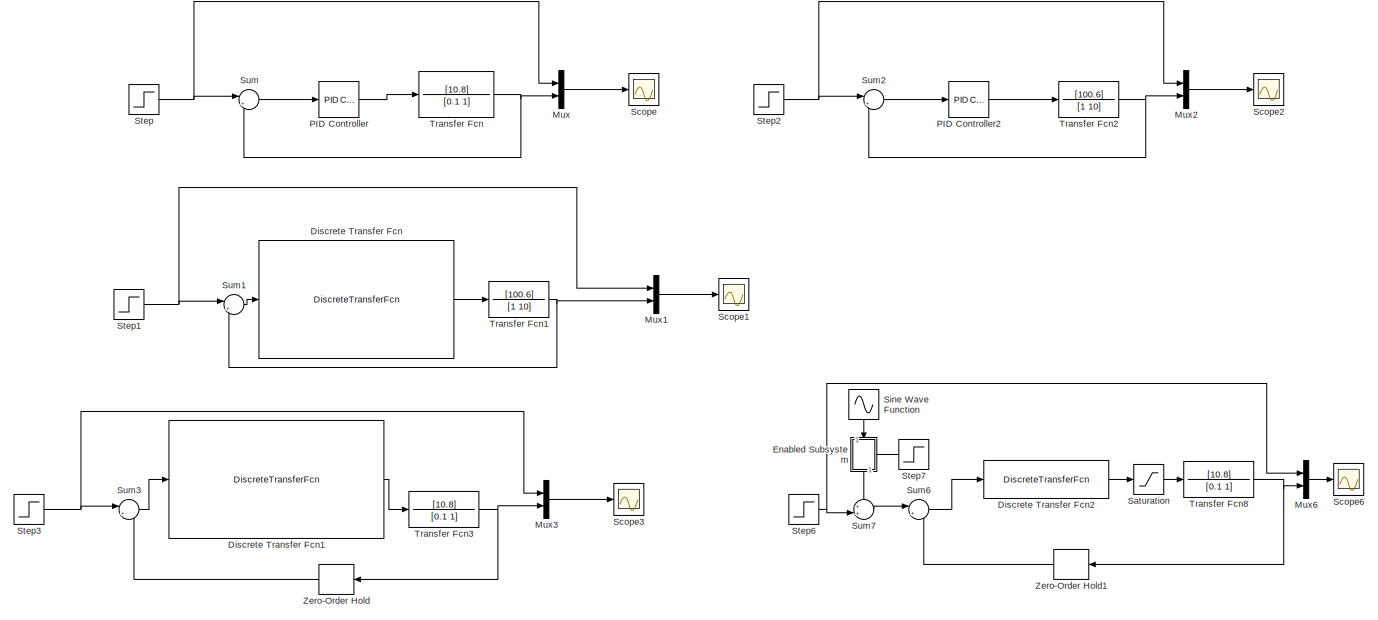
[diagram: root canvas - part 1/3, top left region]
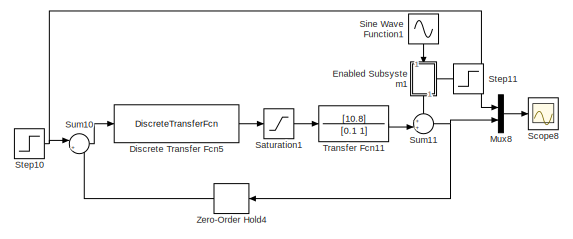
[diagram: root canvas - part 2/3, top right region]
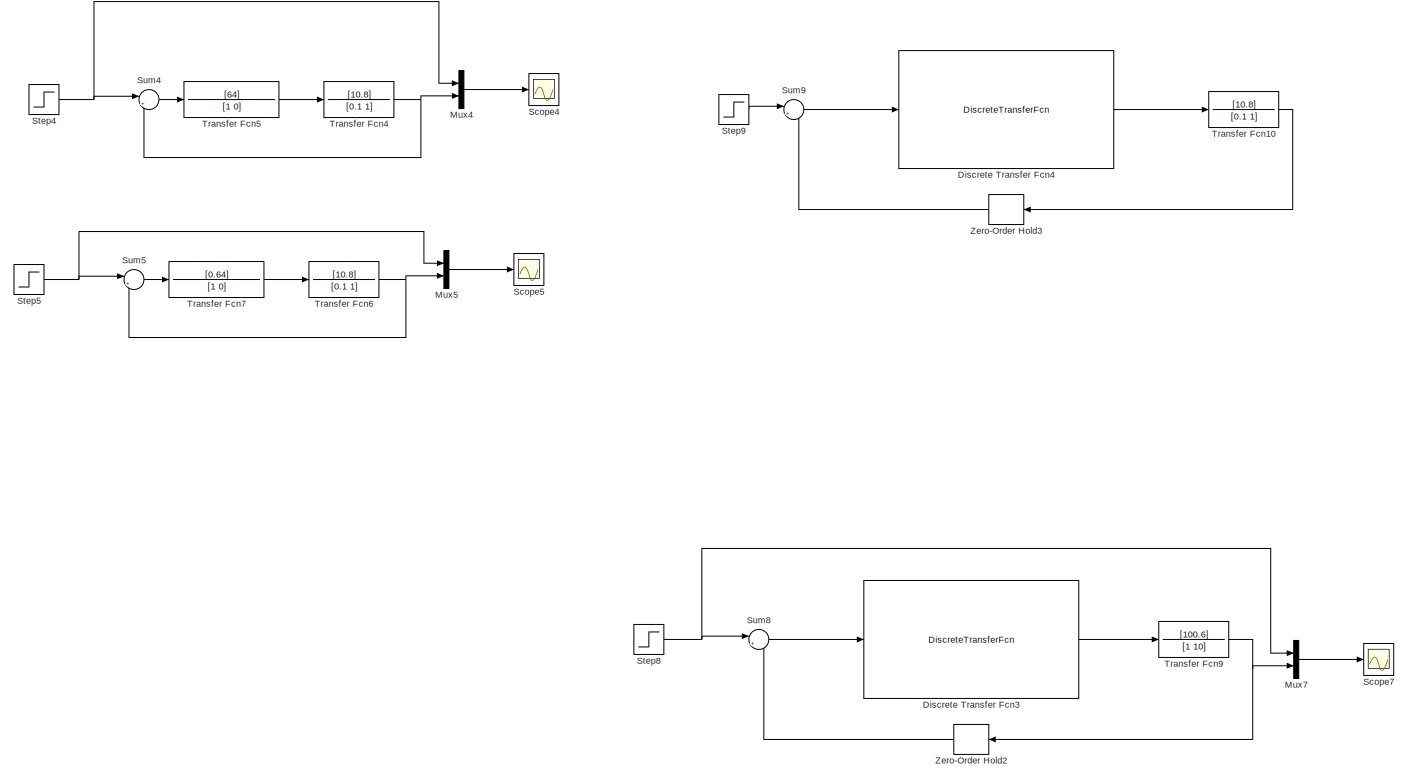
[diagram: root canvas - part 3/3, bottom center region]
MODEL slx_44671868aad1
KIND model
CONFIG AbsTol = auto
CONFIG EnableMultiTasking = off
CONFIG FixedStep = auto
CONFIG MaxStep = auto
CONFIG MinStep = auto
CONFIG RelTol = 1e-3
CONFIG SampleTimeConstraint = Unconstrained
CONFIG Solver = VariableStepAuto
CONFIG SolverName = VariableStepAuto
CONFIG StartTime = 0.0
CONFIG StopTime = 10.0
BLOCK [DiscreteTransferFcn] Discrete Transfer Fcn
  Denominator = [1 -1]
  InputPortMap = u0
  Numerator = [0.023797051029303 -0.014949900888424]
  Ports = [1, 1]
BLOCK [DiscreteTransferFcn] Discrete Transfer Fcn1
  Denominator = [1 -1]
  InputPortMap = u0
  Numerator = [0.003200000000000 0.003200000000000]
  Ports = [1, 1]
BLOCK [DiscreteTransferFcn] Discrete Transfer Fcn2
  Denominator = [1 -1]
  InputPortMap = u0
  Numerator = [0.0032 0.0032]
  Ports = [1, 1]
BLOCK [DiscreteTransferFcn] Discrete Transfer Fcn3
  Denominator = [1 -1]
  InputPortMap = u0
  Numerator = [0.255096910822079 -0.182278834704760]
  Ports = [1, 1]
BLOCK [DiscreteTransferFcn] Discrete Transfer Fcn4
  Denominator = [1 -1]
  InputPortMap = u0
  Numerator = [0.003200000000000 0.003200000000000]
  Ports = [1, 1]
BLOCK [DiscreteTransferFcn] Discrete Transfer Fcn5
  Denominator = [1 -1]
  InputPortMap = u0
  Numerator = [0.0032 0.0032]
  Ports = [1, 1]
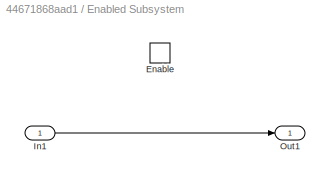
BLOCK [SubSystem] Enabled Subsystem
  NameLocation = left
  Ports = [1, 1, 1]
  RequestExecContextInheritance = off
  TreatAsAtomicUnit = on
BLOCK [EnablePort] Enabled Subsystem/Enable
  Ports = []
BLOCK [Inport] Enabled Subsystem/In1
BLOCK [Outport] Enabled Subsystem/Out1
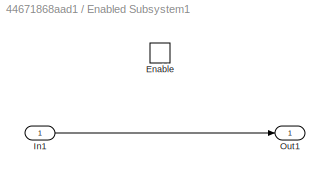
BLOCK [SubSystem] Enabled Subsystem1
  NameLocation = left
  Ports = [1, 1, 1]
  RequestExecContextInheritance = off
  TreatAsAtomicUnit = on
BLOCK [EnablePort] Enabled Subsystem1/Enable
  Ports = []
BLOCK [Inport] Enabled Subsystem1/In1
BLOCK [Outport] Enabled Subsystem1/Out1
BLOCK [Mux] Mux
  DisplayOption = bar
  Inputs = 2
  Ports = [2, 1]
BLOCK [Mux] Mux1
  DisplayOption = bar
  Inputs = 2
  Ports = [2, 1]
BLOCK [Mux] Mux2
  DisplayOption = bar
  Inputs = 2
  Ports = [2, 1]
BLOCK [Mux] Mux3
  DisplayOption = bar
  Inputs = 2
  Ports = [2, 1]
BLOCK [Mux] Mux4
  DisplayOption = bar
  Inputs = 2
  Ports = [2, 1]
BLOCK [Mux] Mux5
  DisplayOption = bar
  Inputs = 2
  Ports = [2, 1]
BLOCK [Mux] Mux6
  DisplayOption = bar
  Inputs = 2
  Ports = [2, 1]
BLOCK [Mux] Mux7
  DisplayOption = bar
  Inputs = 2
  Ports = [2, 1]
BLOCK [Mux] Mux8
  DisplayOption = bar
  Inputs = 2
  Ports = [2, 1]
BLOCK [Reference] PID Controller  REF=simulink/Continuous/PID Controller
  Ports = [1, 1]
  SourceBlock = simulink/Continuous/PID Controller
  SourceProductBaseCode = SL
  SourceType = PID 1dof
BLOCK [Reference] PID Controller2  REF=simulink/Continuous/PID Controller
  Ports = [1, 1]
  SourceBlock = simulink/Continuous/PID Controller
  SourceProductBaseCode = SL
  SourceType = PID 1dof
BLOCK [Saturate] Saturation
  LowerLimit = 0
  UpperLimit = 1
BLOCK [Saturate] Saturation1
  LowerLimit = 0
  UpperLimit = 1
BLOCK [Scope] Scope
  Floating = off
  NumInputPorts = 1
  Ports = [1]
  ScopeSpecificationString = Simulink.scopes.TimeScopeBlockCfg('CurrentConfiguration', extmgr.ConfigurationSet(extmgr.Configuration('Core','General UI',true),extmgr.Configuration('Core','Source UI',true),extmgr.Configuration('Sources','WiredSimulink',true),extmgr.Configuration('Visuals','Time Domain',true,'SerializedDisplays',{struct('MinYLimReal','-576.55545','MaxYLimReal','813.37658','YLabelReal','','MinYLimMag',' 0.00000',...<+1401ch>
BLOCK [Scope] Scope1
  Floating = off
  NumInputPorts = 1
  Ports = [1]
  ScopeSpecificationString = Simulink.scopes.TimeScopeBlockCfg('CurrentConfiguration', extmgr.ConfigurationSet(extmgr.Configuration('Core','General UI',true),extmgr.Configuration('Core','Source UI',true),extmgr.Configuration('Sources','WiredSimulink',true,'DataLoggingVariableName','ScopeData1'),extmgr.Configuration('Visuals','Time Domain',true,'SerializedDisplays',{struct('MinYLimReal','-0.125','MaxYLimReal','1.125','YLabelRe...<+1368ch>
BLOCK [Scope] Scope2
  Floating = off
  NumInputPorts = 1
  Ports = [1]
  ScopeSpecificationString = Simulink.scopes.TimeScopeBlockCfg('CurrentConfiguration', extmgr.ConfigurationSet(extmgr.Configuration('Core','General UI',true),extmgr.Configuration('Core','Source UI',true),extmgr.Configuration('Sources','WiredSimulink',true,'DataLoggingVariableName','ScopeData2'),extmgr.Configuration('Visuals','Time Domain',true),extmgr.Configuration('Tools','Plot Navigation',true),extmgr.Configuration('Tools',...<+40ch>
BLOCK [Scope] Scope3
  Floating = off
  NumInputPorts = 1
  Ports = [1]
  ScopeSpecificationString = Simulink.scopes.TimeScopeBlockCfg('CurrentConfiguration', extmgr.ConfigurationSet(extmgr.Configuration('Core','General UI',true),extmgr.Configuration('Core','Source UI',true),extmgr.Configuration('Sources','WiredSimulink',true,'DataLoggingVariableName','ScopeData3'),extmgr.Configuration('Visuals','Time Domain',true,'SerializedDisplays',{struct('MinYLimReal','0.82381','MaxYLimReal','1.0977','YLabel...<+1420ch>
BLOCK [Scope] Scope4
  Floating = off
  NumInputPorts = 1
  Ports = [1]
  ScopeSpecificationString = Simulink.scopes.TimeScopeBlockCfg('CurrentConfiguration', extmgr.ConfigurationSet(extmgr.Configuration('Core','General UI',true),extmgr.Configuration('Core','Source UI',true),extmgr.Configuration('Sources','WiredSimulink',true,'DataLoggingVariableName','ScopeData4'),extmgr.Configuration('Visuals','Time Domain',true,'SerializedDisplays',{struct('MinYLimReal','-0.22487','MaxYLimReal','2.02387','YLab...<+1428ch>
BLOCK [Scope] Scope5
  Floating = off
  NumInputPorts = 1
  Ports = [1]
  ScopeSpecificationString = Simulink.scopes.TimeScopeBlockCfg('CurrentConfiguration', extmgr.ConfigurationSet(extmgr.Configuration('Core','General UI',true),extmgr.Configuration('Core','Source UI',true),extmgr.Configuration('Sources','WiredSimulink',true,'DataLoggingVariableName','ScopeData1'),extmgr.Configuration('Visuals','Time Domain',true,'SerializedDisplays',{struct('MinYLimReal','-0.02722','MaxYLimReal','1.12987','YLab...<+1758ch>
BLOCK [Scope] Scope6
  Floating = off
  NumInputPorts = 1
  Ports = [1]
  ScopeSpecificationString = Simulink.scopes.TimeScopeBlockCfg('CurrentConfiguration', extmgr.ConfigurationSet(extmgr.Configuration('Core','General UI',true),extmgr.Configuration('Core','Source UI',true),extmgr.Configuration('Sources','WiredSimulink',true,'DataLoggingVariableName','ScopeData_controleDiscreto','DataLogging',true,'DataLoggingSaveFormat','StructureWithTime'),extmgr.Configuration('Visuals','Time Domain',true,'Ser...<+1781ch>
BLOCK [Scope] Scope7
  Floating = off
  NumInputPorts = 1
  Ports = [1]
  ScopeSpecificationString = Simulink.scopes.TimeScopeBlockCfg('CurrentConfiguration', extmgr.ConfigurationSet(extmgr.Configuration('Core','General UI',true),extmgr.Configuration('Core','Source UI',true),extmgr.Configuration('Sources','WiredSimulink',true,'DataLoggingVariableName','ScopeData1'),extmgr.Configuration('Visuals','Time Domain',true,'SerializedDisplays',{struct('MinYLimReal','0.9492','MaxYLimReal','1.20786','YLabel...<+1420ch>
BLOCK [Scope] Scope8
  Floating = off
  NumInputPorts = 1
  Ports = [1]
  ScopeSpecificationString = Simulink.scopes.TimeScopeBlockCfg('CurrentConfiguration', extmgr.ConfigurationSet(extmgr.Configuration('Core','General UI',true),extmgr.Configuration('Core','Source UI',true),extmgr.Configuration('Sources','WiredSimulink',true,'DataLoggingVariableName','ScopeData1','DataLogging',true,'DataLoggingSaveFormat','StructureWithTime'),extmgr.Configuration('Visuals','Time Domain',true,'SerializedDisplays'...<+1765ch>
BLOCK [Sin] Sine Wave Function
  Amplitude = 0.2
  Frequency = 50
  NameLocation = left
  Ports = [0, 1]
  SampleTime = 0
BLOCK [Sin] Sine Wave Function1
  Amplitude = 0.2
  Frequency = 50
  NameLocation = left
  Ports = [0, 1]
  SampleTime = 0
BLOCK [Step] Step
  SampleTime = 0
BLOCK [Step] Step1
  SampleTime = 0
BLOCK [Step] Step10
  SampleTime = 0
BLOCK [Step] Step11
  NameLocation = top
  SampleTime = 0
BLOCK [Step] Step2
  SampleTime = 0
BLOCK [Step] Step3
  SampleTime = 0
BLOCK [Step] Step4
  SampleTime = 0
BLOCK [Step] Step5
  SampleTime = 0
BLOCK [Step] Step6
  SampleTime = 0
BLOCK [Step] Step7
  NameLocation = top
  SampleTime = 0
BLOCK [Step] Step8
  SampleTime = 0
BLOCK [Step] Step9
  SampleTime = 0
BLOCK [Sum] Sum
  Inputs = |+-
  Ports = [2, 1]
BLOCK [Sum] Sum1
  Inputs = |+-
  Ports = [2, 1]
BLOCK [Sum] Sum10
  Inputs = |+-
  Ports = [2, 1]
BLOCK [Sum] Sum11
  Inputs = ++|
  Ports = [2, 1]
BLOCK [Sum] Sum2
  Inputs = |+-
  Ports = [2, 1]
BLOCK [Sum] Sum3
  Inputs = |+-
  Ports = [2, 1]
BLOCK [Sum] Sum4
  Inputs = |+-
  Ports = [2, 1]
BLOCK [Sum] Sum5
  Inputs = |+-
  Ports = [2, 1]
BLOCK [Sum] Sum6
  Inputs = |+-
  Ports = [2, 1]
BLOCK [Sum] Sum7
  Inputs = ++|
  Ports = [2, 1]
BLOCK [Sum] Sum8
  Inputs = |+-
  Ports = [2, 1]
BLOCK [Sum] Sum9
  Inputs = |+-
  Ports = [2, 1]
BLOCK [TransferFcn] Transfer Fcn
  Denominator = [0.1 1]
  Numerator = [10.8]
BLOCK [TransferFcn] Transfer Fcn1
  Denominator = [1 10]
  Numerator = [100.6]
BLOCK [TransferFcn] Transfer Fcn10
  Denominator = [0.1 1]
  Numerator = [10.8]
BLOCK [TransferFcn] Transfer Fcn11
  Denominator = [0.1 1]
  Numerator = [10.8]
BLOCK [TransferFcn] Transfer Fcn2
  Denominator = [1 10]
  Numerator = [100.6]
BLOCK [TransferFcn] Transfer Fcn3
  Denominator = [0.1 1]
  Numerator = [10.8]
BLOCK [TransferFcn] Transfer Fcn4
  Denominator = [0.1 1]
  Numerator = [10.8]
BLOCK [TransferFcn] Transfer Fcn5
  Denominator = [1 0]
  Numerator = [64]
BLOCK [TransferFcn] Transfer Fcn6
  Denominator = [0.1 1]
  Numerator = [10.8]
BLOCK [TransferFcn] Transfer Fcn7
  Denominator = [1 0]
  Numerator = [0.64]
BLOCK [TransferFcn] Transfer Fcn8
  Denominator = [0.1 1]
  Numerator = [10.8]
BLOCK [TransferFcn] Transfer Fcn9
  Denominator = [1 10]
  Numerator = [100.6]
BLOCK [ZeroOrderHold] Zero-Order Hold
  NameLocation = top
  SampleTime = 0.01
BLOCK [ZeroOrderHold] Zero-Order Hold1
  NameLocation = top
  SampleTime = 0.01
BLOCK [ZeroOrderHold] Zero-Order Hold2
  NameLocation = top
  SampleTime = -1
BLOCK [ZeroOrderHold] Zero-Order Hold3
  NameLocation = top
  SampleTime = 0.01
BLOCK [ZeroOrderHold] Zero-Order Hold4
  NameLocation = top
  SampleTime = 0.01
LINE Discrete Transfer Fcn1:1 -> Transfer Fcn3:1
LINE Discrete Transfer Fcn2:1 -> Saturation:1
LINE Discrete Transfer Fcn3:1 -> Transfer Fcn9:1
LINE Discrete Transfer Fcn4:1 -> Transfer Fcn10:1
LINE Discrete Transfer Fcn5:1 -> Saturation1:1
LINE Discrete Transfer Fcn:1 -> Transfer Fcn1:1
LINE Enabled Subsystem/In1:1 -> Enabled Subsystem/Out1:1
LINE Enabled Subsystem1/In1:1 -> Enabled Subsystem1/Out1:1
LINE Enabled Subsystem1:1 -> Sum11:1
LINE Enabled Subsystem:1 -> Sum7:1
LINE Mux1:1 -> Scope1:1
LINE Mux2:1 -> Scope2:1
LINE Mux3:1 -> Scope3:1
LINE Mux4:1 -> Scope4:1
LINE Mux5:1 -> Scope5:1
LINE Mux6:1 -> Scope6:1
LINE Mux7:1 -> Scope7:1
LINE Mux8:1 -> Scope8:1
LINE Mux:1 -> Scope:1
LINE PID Controller2:1 -> Transfer Fcn2:1
LINE PID Controller:1 -> Transfer Fcn:1
LINE Saturation1:1 -> Transfer Fcn11:1
LINE Saturation:1 -> Transfer Fcn8:1
LINE Sine Wave Function1:1 -> Enabled Subsystem1:1
LINE Sine Wave Function:1 -> Enabled Subsystem:1
NET Step10:1 -> Mux8:1, Sum10:1
LINE Step11:1 -> Enabled Subsystem1:enable
NET Step1:1 -> Mux1:1, Sum1:1
NET Step2:1 -> Mux2:1, Sum2:1
NET Step3:1 -> Mux3:1, Sum3:1
NET Step4:1 -> Mux4:1, Sum4:1
NET Step5:1 -> Mux5:1, Sum5:1
NET Step6:1 -> Mux6:1, Sum7:2
LINE Step7:1 -> Enabled Subsystem:enable
NET Step8:1 -> Mux7:1, Sum8:1
LINE Step9:1 -> Sum9:1
NET Step:1 -> Mux:1, Sum:1
LINE Sum10:1 -> Discrete Transfer Fcn5:1
NET Sum11:1 -> Mux8:2, Zero-Order Hold4:1
LINE Sum1:1 -> Discrete Transfer Fcn:1
LINE Sum2:1 -> PID Controller2:1
LINE Sum3:1 -> Discrete Transfer Fcn1:1
LINE Sum4:1 -> Transfer Fcn5:1
LINE Sum5:1 -> Transfer Fcn7:1
LINE Sum6:1 -> Discrete Transfer Fcn2:1
LINE Sum7:1 -> Sum6:1
LINE Sum8:1 -> Discrete Transfer Fcn3:1
LINE Sum9:1 -> Discrete Transfer Fcn4:1
LINE Sum:1 -> PID Controller:1
LINE Transfer Fcn10:1 -> Zero-Order Hold3:1
LINE Transfer Fcn11:1 -> Sum11:2
NET Transfer Fcn1:1 -> Mux1:2, Sum1:2
NET Transfer Fcn2:1 -> Mux2:2, Sum2:2
NET Transfer Fcn3:1 -> Mux3:2, Zero-Order Hold:1
NET Transfer Fcn4:1 -> Mux4:2, Sum4:2
LINE Transfer Fcn5:1 -> Transfer Fcn4:1
NET Transfer Fcn6:1 -> Mux5:2, Sum5:2
LINE Transfer Fcn7:1 -> Transfer Fcn6:1
NET Transfer Fcn8:1 -> Mux6:2, Zero-Order Hold1:1
NET Transfer Fcn9:1 -> Mux7:2, Zero-Order Hold2:1
NET Transfer Fcn:1 -> Mux:2, Sum:2
LINE Zero-Order Hold1:1 -> Sum6:2
LINE Zero-Order Hold2:1 -> Sum8:2
LINE Zero-Order Hold3:1 -> Sum9:2
LINE Zero-Order Hold4:1 -> Sum10:2
LINE Zero-Order Hold:1 -> Sum3:2
note: NET lines group one-source signal fan-out (src -> all destinations, sorted); 1:1 wires keep LINE
